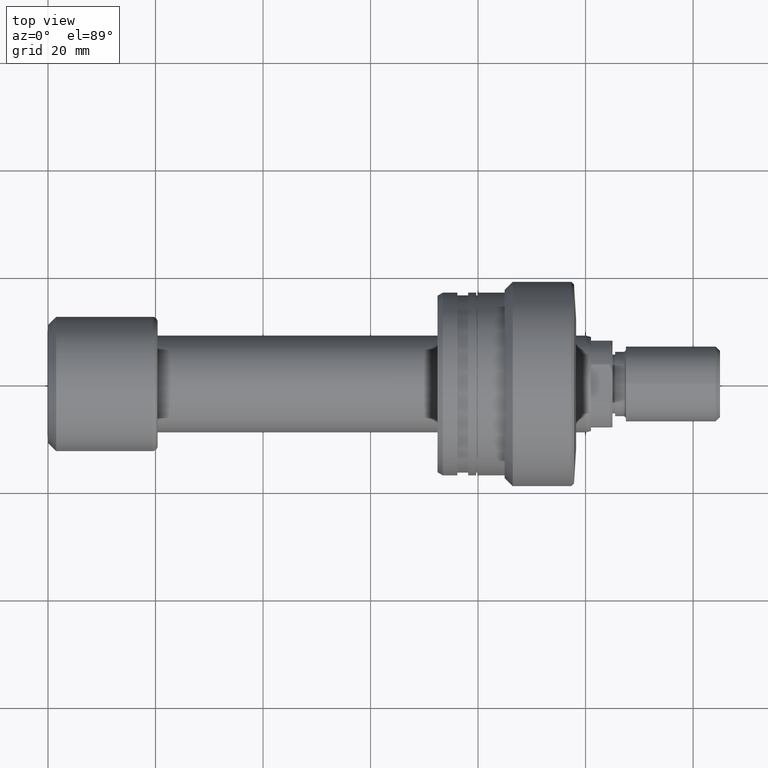
[diagram: clean part render]
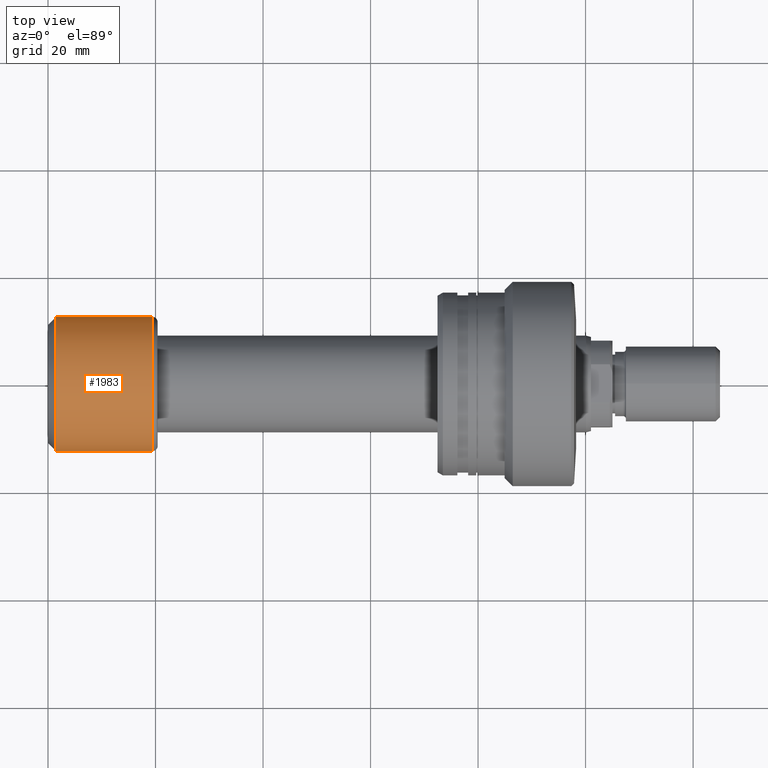
[diagram: same view with one face highlighted and labeled with its STEP entity id]
A machine part, top view. The second image highlights one B-rep face of the part: STEP entity #1983.
In plain terms, the highlighted cylindrical surface (partial cylindrical patch) has radius 12.5 mm, axis along (-1, -0, -0).
Its self-contained STEP definition (entity closure, byte-faithful):
#85 = CIRCLE ( 'NONE', #1970, 12.50000000000000000 ) ;
#121 = VECTOR ( 'NONE', #317, 1000.000000000000000 ) ;
#160 = CARTESIAN_POINT ( 'NONE',  ( 1.500000000000001332, 12.50000000000000000, 0.000000000000000000 ) ) ;
#164 = DIRECTION ( 'NONE',  ( 1.734723475976807094E-17, -1.000000000000000000, 0.000000000000000000 ) ) ;
#240 = EDGE_CURVE ( 'NONE', #2149, #1679, #1953, .T. ) ;
#278 = CARTESIAN_POINT ( 'NONE',  ( 19.39999999999999503, 2.074912104813986935E-16, 0.000000000000000000 ) ) ;
#300 = ORIENTED_EDGE ( 'NONE', *, *, #489, .F. ) ;
#317 = DIRECTION ( 'NONE',  ( -1.000000000000000000, -1.069542322069065801E-17, -0.000000000000000000 ) ) ;
#335 = FACE_OUTER_BOUND ( 'NONE', #461, .T. ) ;
#373 = AXIS2_PLACEMENT_3D ( 'NONE', #2800, #2584, #1713 ) ;
#398 = VERTEX_POINT ( 'NONE', #2096 ) ;
#457 = CARTESIAN_POINT ( 'NONE',  ( 19.39999999999999503, -12.50000000000000000, 0.000000000000000000 ) ) ;
#461 = EDGE_LOOP ( 'NONE', ( #609, #828, #1936, #300 ) ) ;
#489 = EDGE_CURVE ( 'NONE', #1665, #398, #2773, .T. ) ;
#591 = CARTESIAN_POINT ( 'NONE',  ( 1.500000000000001554, 1.604313483103600319E-17, 0.000000000000000000 ) ) ;
#601 = CARTESIAN_POINT ( 'NONE',  ( 19.39999999999999503, 12.50000000000000000, 1.530808498934191521E-15 ) ) ;
#609 = ORIENTED_EDGE ( 'NONE', *, *, #2409, .T. ) ;
#828 = ORIENTED_EDGE ( 'NONE', *, *, #240, .T. ) ;
#831 = DIRECTION ( 'NONE',  ( -1.000000000000000000, -1.069542322069065801E-17, -0.000000000000000000 ) ) ;
#959 = DIRECTION ( 'NONE',  ( -1.000000000000000000, -1.069542322069065801E-17, -0.000000000000000000 ) ) ;
#1031 = AXIS2_PLACEMENT_3D ( 'NONE', #591, #831, #164 ) ;
#1154 = DIRECTION ( 'NONE',  ( -1.000000000000000000, -1.069542322069065801E-17, -0.000000000000000000 ) ) ;
#1277 = CARTESIAN_POINT ( 'NONE',  ( -1.336927902586332490E-16, 12.50000000000000000, 1.530808498934191521E-15 ) ) ;
#1665 = VERTEX_POINT ( 'NONE', #457 ) ;
#1679 = VERTEX_POINT ( 'NONE', #160 ) ;
#1713 = DIRECTION ( 'NONE',  ( 1.069542322069065955E-17, -1.000000000000000000, 0.000000000000000000 ) ) ;
#1851 = DIRECTION ( 'NONE',  ( 0.000000000000000000, -1.000000000000000000, 0.000000000000000000 ) ) ;
#1908 = CYLINDRICAL_SURFACE ( 'NONE', #373, 12.50000000000000000 ) ;
#1936 = ORIENTED_EDGE ( 'NONE', *, *, #2542, .F. ) ;
#1953 = LINE ( 'NONE', #1277, #2655 ) ;
#1970 = AXIS2_PLACEMENT_3D ( 'NONE', #278, #959, #1851 ) ;
#1983 = ADVANCED_FACE ( 'NONE', ( #335 ), #1908, .T. ) ;
#2096 = CARTESIAN_POINT ( 'NONE',  ( 1.500000000000001776, -12.50000000000000000, 1.530808498934191521E-15 ) ) ;
#2149 = VERTEX_POINT ( 'NONE', #601 ) ;
#2334 = CARTESIAN_POINT ( 'NONE',  ( 1.336927902586332490E-16, -12.50000000000000000, 0.000000000000000000 ) ) ;
#2409 = EDGE_CURVE ( 'NONE', #1665, #2149, #85, .T. ) ;
#2542 = EDGE_CURVE ( 'NONE', #398, #1679, #2766, .T. ) ;
#2584 = DIRECTION ( 'NONE',  ( -1.000000000000000000, -1.069542322069065801E-17, -0.000000000000000000 ) ) ;
#2655 = VECTOR ( 'NONE', #1154, 1000.000000000000000 ) ;
#2766 = CIRCLE ( 'NONE', #1031, 12.50000000000000000 ) ;
#2773 = LINE ( 'NONE', #2334, #121 ) ;
#2800 = CARTESIAN_POINT ( 'NONE',  ( 0.000000000000000000, 0.000000000000000000, 0.000000000000000000 ) ) ;